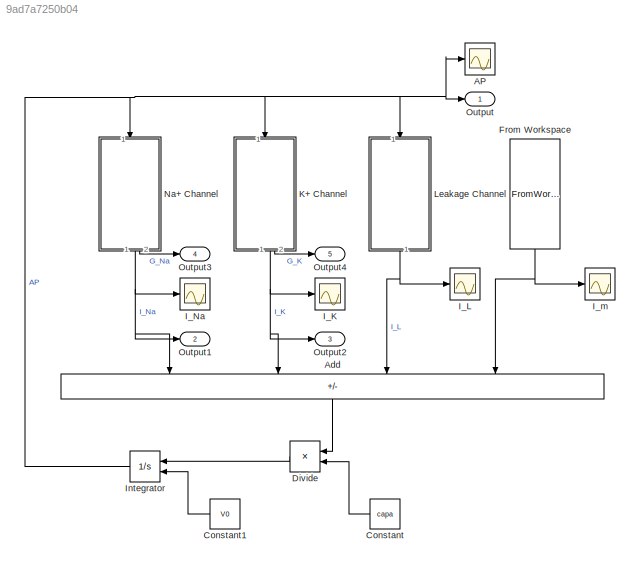
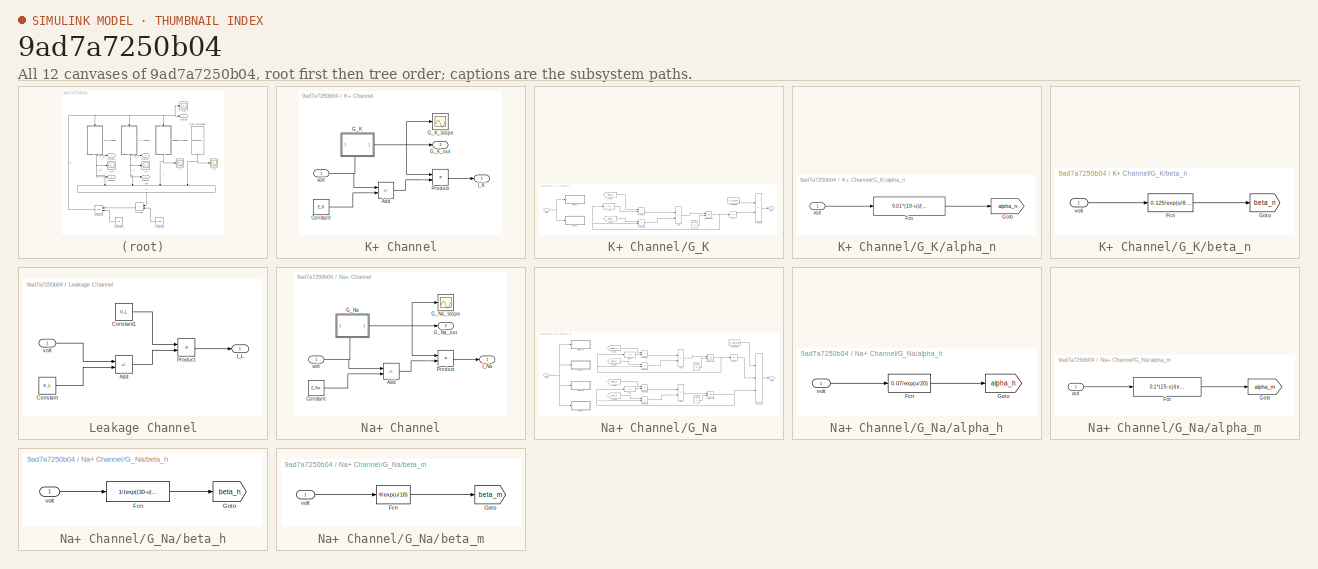
[diagram: thumbnail index - all 12 canvases of the model, root first then tree order]
MODEL slx_9ad7a7250b04
KIND model
CONFIG AbsTol = auto
CONFIG EnableMultiTasking = off
CONFIG FixedStep = auto
CONFIG MaxStep = auto
CONFIG MinStep = auto
CONFIG RelTol = 1e-3
CONFIG SampleTimeConstraint = Unconstrained
CONFIG SolverName = VariableStepAuto
CONFIG StartTime = 0.0
CONFIG StopTime = 10.0
BLOCK [Scope] AP
  Floating = off
  NumInputPorts = 1
  Ports = [1]
  ScopeSpecificationString = Simulink.scopes.TimeScopeBlockCfg('CurrentConfiguration', extmgr.ConfigurationSet(extmgr.Configuration('Core','General UI',true),extmgr.Configuration('Core','Source UI',true),extmgr.Configuration('Sources','WiredSimulink',true,'DataLoggingVariableName','ScopeData1'),extmgr.Configuration('Visuals','Time Domain',true,'SerializedDisplays',{struct('MinYLimReal','-26.86762','MaxYLimReal','129.4153','YL...<+1367ch>
BLOCK [Sum] Add
  IconShape = rectangular
  Inputs = ---+
  NameLocation = left
  Ports = [4, 1]
BLOCK [Constant] Constant
  NameLocation = top
  Value = capa
BLOCK [Constant] Constant1
  NameLocation = top
  Value = V0
BLOCK [Product] Divide
  Inputs = */
  NameLocation = top
  Ports = [2, 1]
BLOCK [FromWorkspace] From Workspace
  NameLocation = left
  VariableName = I_m
BLOCK [Scope] I_K
  Floating = off
  NumInputPorts = 1
  Ports = [1]
  ScopeSpecificationString = Simulink.scopes.TimeScopeBlockCfg('CurrentConfiguration', extmgr.ConfigurationSet(extmgr.Configuration('Core','General UI',true),extmgr.Configuration('Core','Source UI',true),extmgr.Configuration('Sources','WiredSimulink',true,'DataLoggingVariableName','ScopeData2'),extmgr.Configuration('Visuals','Time Domain',true,'SerializedDisplays',{struct('MinYLimReal','-116.75708','MaxYLimReal','1050.8137','...<+1406ch>
BLOCK [Scope] I_L
  Floating = off
  NumInputPorts = 1
  Ports = [1]
  ScopeSpecificationString = Simulink.scopes.TimeScopeBlockCfg('CurrentConfiguration', extmgr.ConfigurationSet(extmgr.Configuration('Core','General UI',true),extmgr.Configuration('Core','Source UI',true),extmgr.Configuration('Sources','WiredSimulink',true,'DataLoggingVariableName','ScopeData3'),extmgr.Configuration('Visuals','Time Domain',true,'SerializedDisplays',{struct('MinYLimReal','-11.24419','MaxYLimReal','35.64069','YL...<+1398ch>
BLOCK [Scope] I_Na
  Floating = off
  NumInputPorts = 1
  Ports = [1]
  ScopeSpecificationString = Simulink.scopes.TimeScopeBlockCfg('CurrentConfiguration', extmgr.ConfigurationSet(extmgr.Configuration('Core','General UI',true),extmgr.Configuration('Core','Source UI',true),extmgr.Configuration('Sources','WiredSimulink',true,'DataLoggingVariableName','ScopeData4'),extmgr.Configuration('Visuals','Time Domain',true,'SerializedDisplays',{struct('MinYLimReal','-1017.94679','MaxYLimReal','113.1052','...<+1410ch>
BLOCK [Scope] I_m
  Floating = off
  NumInputPorts = 1
  Ports = [1]
  ScopeSpecificationString = Simulink.scopes.TimeScopeBlockCfg('CurrentConfiguration', extmgr.ConfigurationSet(extmgr.Configuration('Core','General UI',true),extmgr.Configuration('Core','Source UI',true),extmgr.Configuration('Sources','WiredSimulink',true,'DataLoggingVariableName','ScopeData5'),extmgr.Configuration('Visuals','Time Domain',true,'SerializedDisplays',{struct('MinYLimReal','-3.75','MaxYLimReal','33.75','YLabelRea...<+1359ch>
BLOCK [Integrator] Integrator
  InitialConditionSource = external
  NameLocation = top
  Ports = [2, 1]
BLOCK [SubSystem] K+ Channel
  NameLocation = left
  Ports = [1, 2]
  RequestExecContextInheritance = off
BLOCK [Sum] K+ Channel/Add
  IconShape = rectangular
  Inputs = +-
  Ports = [2, 1]
BLOCK [Constant] K+ Channel/Constant
  Value = E_K
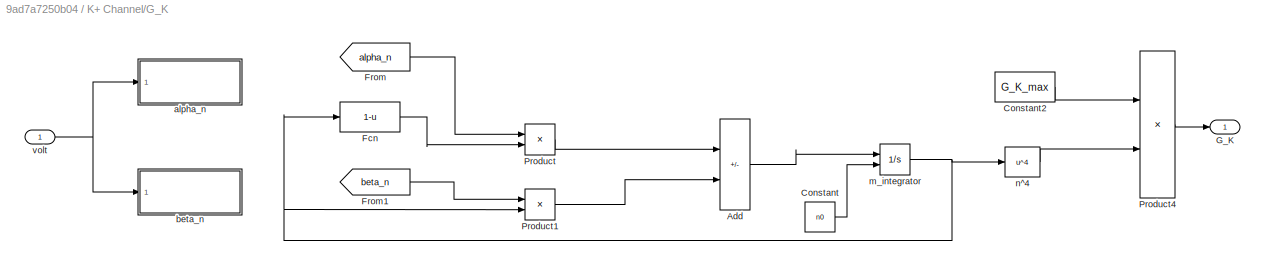
BLOCK [SubSystem] K+ Channel/G_K
  PortSchema = {"entries":[{"content":{"sides":[{"content":{"connectorIds":[]},"type":"ConnectorPlacement.EquallySpacedRectSide","uuid":"c632c91d-1676-4ce6-ab06-0028f8692ea5"},{"content":{"connectorIds":["Out1"],"side":"RIGHT"},"type":"ConnectorPlacement.EquallySpacedRectSide","uuid":"77b5085d-448e-4fc4-839b-3922e0b13526"},{"content":{"connectorIds":[],"side":"TOP"},"type":"ConnectorPlacement.EquallySpacedRectSi...<+528ch>
  Ports = [1, 1]
  RequestExecContextInheritance = off
BLOCK [Sum] K+ Channel/G_K/Add
  IconShape = rectangular
  Inputs = +-
  Ports = [2, 1]
BLOCK [Constant] K+ Channel/G_K/Constant
  Value = n0
BLOCK [Constant] K+ Channel/G_K/Constant2
  Value = G_K_max
BLOCK [Fcn] K+ Channel/G_K/Fcn
  Expr = 1-u
BLOCK [From] K+ Channel/G_K/From
  GotoTag = alpha_n
  TagVisibility = global
BLOCK [From] K+ Channel/G_K/From1
  GotoTag = beta_n
  TagVisibility = global
BLOCK [Outport] K+ Channel/G_K/G_K
BLOCK [Product] K+ Channel/G_K/Product
  Ports = [2, 1]
BLOCK [Product] K+ Channel/G_K/Product1
  Ports = [2, 1]
BLOCK [Product] K+ Channel/G_K/Product4
  Ports = [2, 1]
BLOCK [SubSystem] K+ Channel/G_K/alpha_n
  Ports = [1]
  RequestExecContextInheritance = off
BLOCK [Fcn] K+ Channel/G_K/alpha_n/Fcn
  Expr = 0.01*(10-u)/(exp((10-u)/10)-1)
BLOCK [Goto] K+ Channel/G_K/alpha_n/Goto
  GotoTag = alpha_n
  TagVisibility = global
BLOCK [Inport] K+ Channel/G_K/alpha_n/volt
BLOCK [SubSystem] K+ Channel/G_K/beta_n
  Ports = [1]
  RequestExecContextInheritance = off
BLOCK [Fcn] K+ Channel/G_K/beta_n/Fcn
  Expr = 0.125/exp(u/80)
BLOCK [Goto] K+ Channel/G_K/beta_n/Goto
  GotoTag = beta_n
  TagVisibility = global
BLOCK [Inport] K+ Channel/G_K/beta_n/volt
BLOCK [Integrator] K+ Channel/G_K/m_integrator
  InitialConditionSource = external
  Ports = [2, 1]
BLOCK [Fcn] K+ Channel/G_K/n^4
  Expr = u^4
BLOCK [Inport] K+ Channel/G_K/volt
BLOCK [Outport] K+ Channel/G_K_out
  Port = 2
  VectorParamsAs1DForOutWhenUnconnected = off
BLOCK [Scope] K+ Channel/G_K_scope
  Floating = off
  NumInputPorts = 1
  Ports = [1]
  ScopeSpecificationString = Simulink.scopes.TimeScopeBlockCfg('CurrentConfiguration', extmgr.ConfigurationSet(extmgr.Configuration('Core','General UI',true),extmgr.Configuration('Core','Source UI',true),extmgr.Configuration('Sources','WiredSimulink',true,'DataLoggingVariableName','ScopeData6'),extmgr.Configuration('Visuals','Time Domain',true,'SerializedDisplays',{struct('MinYLimReal','-1.73018','MaxYLimReal','15.57163','YLa...<+1401ch>
BLOCK [Outport] K+ Channel/I_K
  VectorParamsAs1DForOutWhenUnconnected = off
BLOCK [Product] K+ Channel/Product
  Ports = [2, 1]
BLOCK [Inport] K+ Channel/volt
BLOCK [SubSystem] Leakage Channel
  NameLocation = left
  Ports = [1, 1]
  RequestExecContextInheritance = off
BLOCK [Sum] Leakage Channel/Add
  IconShape = rectangular
  Inputs = +-
  Ports = [2, 1]
BLOCK [Constant] Leakage Channel/Constant
  Value = E_L
BLOCK [Constant] Leakage Channel/Constant1
  Value = G_L
BLOCK [Outport] Leakage Channel/I_L
  VectorParamsAs1DForOutWhenUnconnected = off
BLOCK [Product] Leakage Channel/Product
  Ports = [2, 1]
BLOCK [Inport] Leakage Channel/volt
BLOCK [SubSystem] Na+ Channel
  NameLocation = left
  Ports = [1, 2]
  RequestExecContextInheritance = off
BLOCK [Sum] Na+ Channel/Add
  IconShape = rectangular
  Inputs = +-
  Ports = [2, 1]
BLOCK [Constant] Na+ Channel/Constant
  Value = E_Na
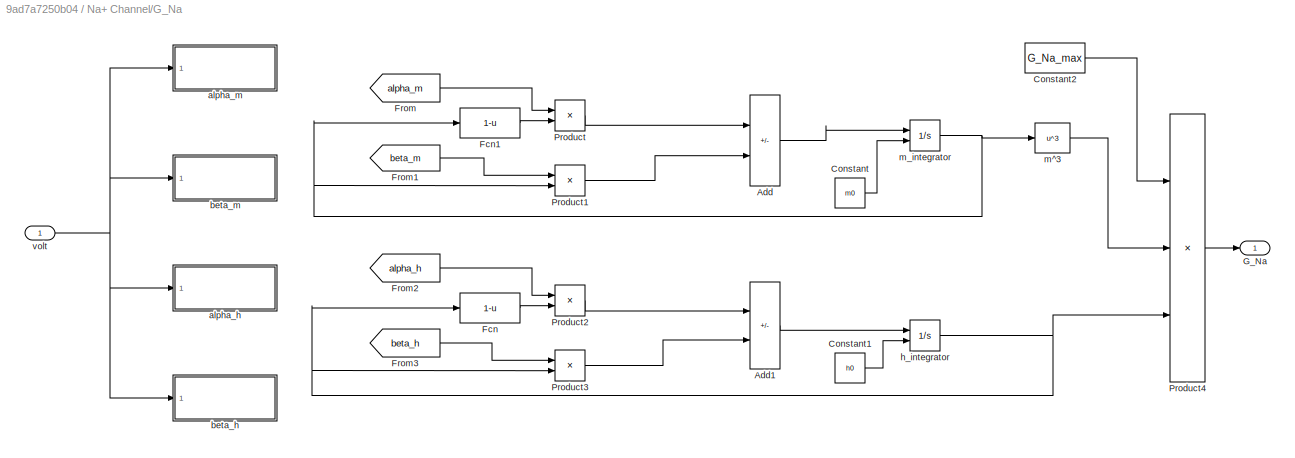
BLOCK [SubSystem] Na+ Channel/G_Na
  PortSchema = {"entries":[{"content":{"sides":[{"content":{"connectorIds":[]},"type":"ConnectorPlacement.EquallySpacedRectSide","uuid":"c632c91d-1676-4ce6-ab06-0028f8692ea5"},{"content":{"connectorIds":["Out1"],"side":"RIGHT"},"type":"ConnectorPlacement.EquallySpacedRectSide","uuid":"77b5085d-448e-4fc4-839b-3922e0b13526"},{"content":{"connectorIds":[],"side":"TOP"},"type":"ConnectorPlacement.EquallySpacedRectSi...<+528ch>
  Ports = [1, 1]
  RequestExecContextInheritance = off
BLOCK [Sum] Na+ Channel/G_Na/Add
  IconShape = rectangular
  Inputs = +-
  Ports = [2, 1]
BLOCK [Sum] Na+ Channel/G_Na/Add1
  IconShape = rectangular
  Inputs = +-
  Ports = [2, 1]
BLOCK [Constant] Na+ Channel/G_Na/Constant
  Value = m0
BLOCK [Constant] Na+ Channel/G_Na/Constant1
  Value = h0
BLOCK [Constant] Na+ Channel/G_Na/Constant2
  Value = G_Na_max
BLOCK [Fcn] Na+ Channel/G_Na/Fcn
  Expr = 1-u
BLOCK [Fcn] Na+ Channel/G_Na/Fcn1
  Expr = 1-u
BLOCK [From] Na+ Channel/G_Na/From
  GotoTag = alpha_m
  TagVisibility = global
BLOCK [From] Na+ Channel/G_Na/From1
  GotoTag = beta_m
  TagVisibility = global
BLOCK [From] Na+ Channel/G_Na/From2
  GotoTag = alpha_h
  TagVisibility = global
BLOCK [From] Na+ Channel/G_Na/From3
  GotoTag = beta_h
  TagVisibility = global
BLOCK [Outport] Na+ Channel/G_Na/G_Na
BLOCK [Product] Na+ Channel/G_Na/Product
  Ports = [2, 1]
BLOCK [Product] Na+ Channel/G_Na/Product1
  Ports = [2, 1]
BLOCK [Product] Na+ Channel/G_Na/Product2
  Ports = [2, 1]
BLOCK [Product] Na+ Channel/G_Na/Product3
  Ports = [2, 1]
BLOCK [Product] Na+ Channel/G_Na/Product4
  Inputs = 3
  Ports = [3, 1]
BLOCK [SubSystem] Na+ Channel/G_Na/alpha_h
  Ports = [1]
  RequestExecContextInheritance = off
BLOCK [Fcn] Na+ Channel/G_Na/alpha_h/Fcn
  Expr = 0.07/exp(u/20)
BLOCK [Goto] Na+ Channel/G_Na/alpha_h/Goto
  GotoTag = alpha_h
  TagVisibility = global
BLOCK [Inport] Na+ Channel/G_Na/alpha_h/volt
BLOCK [SubSystem] Na+ Channel/G_Na/alpha_m
  Ports = [1]
  RequestExecContextInheritance = off
BLOCK [Fcn] Na+ Channel/G_Na/alpha_m/Fcn
  Expr = 0.1*(25-u)/(exp((25-u)/10)-1)
BLOCK [Goto] Na+ Channel/G_Na/alpha_m/Goto
  GotoTag = alpha_m
  TagVisibility = global
BLOCK [Inport] Na+ Channel/G_Na/alpha_m/volt
BLOCK [SubSystem] Na+ Channel/G_Na/beta_h
  Ports = [1]
  RequestExecContextInheritance = off
BLOCK [Fcn] Na+ Channel/G_Na/beta_h/Fcn
  Expr = 1/(exp((30-u)/10)+1)
BLOCK [Goto] Na+ Channel/G_Na/beta_h/Goto
  GotoTag = beta_h
  TagVisibility = global
BLOCK [Inport] Na+ Channel/G_Na/beta_h/volt
BLOCK [SubSystem] Na+ Channel/G_Na/beta_m
  Ports = [1]
  RequestExecContextInheritance = off
BLOCK [Fcn] Na+ Channel/G_Na/beta_m/Fcn
  Expr = 4/exp(u/18)
BLOCK [Goto] Na+ Channel/G_Na/beta_m/Goto
  GotoTag = beta_m
  TagVisibility = global
BLOCK [Inport] Na+ Channel/G_Na/beta_m/volt
BLOCK [Integrator] Na+ Channel/G_Na/h_integrator
  InitialConditionSource = external
  Ports = [2, 1]
BLOCK [Fcn] Na+ Channel/G_Na/m^3
  Expr = u^3
BLOCK [Integrator] Na+ Channel/G_Na/m_integrator
  InitialConditionSource = external
  Ports = [2, 1]
BLOCK [Inport] Na+ Channel/G_Na/volt
BLOCK [Outport] Na+ Channel/G_Na_out
  Port = 2
  VectorParamsAs1DForOutWhenUnconnected = off
BLOCK [Scope] Na+ Channel/G_Na_scope
  Floating = off
  NumInputPorts = 1
  Ports = [1]
  ScopeSpecificationString = Simulink.scopes.TimeScopeBlockCfg('CurrentConfiguration', extmgr.ConfigurationSet(extmgr.Configuration('Core','General UI',true),extmgr.Configuration('Core','Source UI',true),extmgr.Configuration('Sources','WiredSimulink',true,'DataLoggingVariableName','ScopeData5'),extmgr.Configuration('Visuals','Time Domain',true,'SerializedDisplays',{struct('MinYLimReal','-7.41192','MaxYLimReal','66.70725','YLa...<+1397ch>
BLOCK [Outport] Na+ Channel/I_Na
  VectorParamsAs1DForOutWhenUnconnected = off
BLOCK [Product] Na+ Channel/Product
  Ports = [2, 1]
BLOCK [Inport] Na+ Channel/volt
BLOCK [Outport] Output
  VectorParamsAs1DForOutWhenUnconnected = off
BLOCK [Outport] Output1
  Port = 2
  VectorParamsAs1DForOutWhenUnconnected = off
BLOCK [Outport] Output2
  Port = 3
  VectorParamsAs1DForOutWhenUnconnected = off
BLOCK [Outport] Output3
  Port = 4
  VectorParamsAs1DForOutWhenUnconnected = off
BLOCK [Outport] Output4
  Port = 5
  VectorParamsAs1DForOutWhenUnconnected = off
LINE Add:1 -> Divide:1
LINE Constant1:1 -> Integrator:2
LINE Constant:1 -> Divide:2
LINE Divide:1 -> Integrator:1
NET From Workspace:1 -> Add:4, I_m:1
NET Integrator:1 -> AP:1, K+ Channel:1, Leakage Channel:1, Na+ Channel:1, Output:1
LINE K+ Channel/Add:1 -> K+ Channel/Product:2
LINE K+ Channel/Constant:1 -> K+ Channel/Add:2
LINE K+ Channel/G_K/Add:1 -> K+ Channel/G_K/m_integrator:1
LINE K+ Channel/G_K/Constant2:1 -> K+ Channel/G_K/Product4:1
LINE K+ Channel/G_K/Constant:1 -> K+ Channel/G_K/m_integrator:2
LINE K+ Channel/G_K/Fcn:1 -> K+ Channel/G_K/Product:2
LINE K+ Channel/G_K/From1:1 -> K+ Channel/G_K/Product1:1
LINE K+ Channel/G_K/From:1 -> K+ Channel/G_K/Product:1
LINE K+ Channel/G_K/Product1:1 -> K+ Channel/G_K/Add:2
LINE K+ Channel/G_K/Product4:1 -> K+ Channel/G_K/G_K:1
LINE K+ Channel/G_K/Product:1 -> K+ Channel/G_K/Add:1
LINE K+ Channel/G_K/alpha_n/Fcn:1 -> K+ Channel/G_K/alpha_n/Goto:1
LINE K+ Channel/G_K/alpha_n/volt:1 -> K+ Channel/G_K/alpha_n/Fcn:1
LINE K+ Channel/G_K/beta_n/Fcn:1 -> K+ Channel/G_K/beta_n/Goto:1
LINE K+ Channel/G_K/beta_n/volt:1 -> K+ Channel/G_K/beta_n/Fcn:1
NET K+ Channel/G_K/m_integrator:1 -> K+ Channel/G_K/Fcn:1, K+ Channel/G_K/Product1:2, K+ Channel/G_K/n^4:1
LINE K+ Channel/G_K/n^4:1 -> K+ Channel/G_K/Product4:2
NET K+ Channel/G_K/volt:1 -> K+ Channel/G_K/alpha_n:1, K+ Channel/G_K/beta_n:1
NET K+ Channel/G_K:1 -> K+ Channel/G_K_out:1, K+ Channel/G_K_scope:1, K+ Channel/Product:1
LINE K+ Channel/Product:1 -> K+ Channel/I_K:1
NET K+ Channel/volt:1 -> K+ Channel/Add:1, K+ Channel/G_K:1
NET K+ Channel:1 -> Add:2, I_K:1, Output2:1
LINE K+ Channel:2 -> Output4:1
LINE Leakage Channel/Add:1 -> Leakage Channel/Product:2
LINE Leakage Channel/Constant1:1 -> Leakage Channel/Product:1
LINE Leakage Channel/Constant:1 -> Leakage Channel/Add:2
LINE Leakage Channel/Product:1 -> Leakage Channel/I_L:1
LINE Leakage Channel/volt:1 -> Leakage Channel/Add:1
NET Leakage Channel:1 -> Add:3, I_L:1
LINE Na+ Channel/Add:1 -> Na+ Channel/Product:2
LINE Na+ Channel/Constant:1 -> Na+ Channel/Add:2
LINE Na+ Channel/G_Na/Add1:1 -> Na+ Channel/G_Na/h_integrator:1
LINE Na+ Channel/G_Na/Add:1 -> Na+ Channel/G_Na/m_integrator:1
LINE Na+ Channel/G_Na/Constant1:1 -> Na+ Channel/G_Na/h_integrator:2
LINE Na+ Channel/G_Na/Constant2:1 -> Na+ Channel/G_Na/Product4:1
LINE Na+ Channel/G_Na/Constant:1 -> Na+ Channel/G_Na/m_integrator:2
LINE Na+ Channel/G_Na/Fcn1:1 -> Na+ Channel/G_Na/Product:2
LINE Na+ Channel/G_Na/Fcn:1 -> Na+ Channel/G_Na/Product2:2
LINE Na+ Channel/G_Na/From1:1 -> Na+ Channel/G_Na/Product1:1
LINE Na+ Channel/G_Na/From2:1 -> Na+ Channel/G_Na/Product2:1
LINE Na+ Channel/G_Na/From3:1 -> Na+ Channel/G_Na/Product3:1
LINE Na+ Channel/G_Na/From:1 -> Na+ Channel/G_Na/Product:1
LINE Na+ Channel/G_Na/Product1:1 -> Na+ Channel/G_Na/Add:2
LINE Na+ Channel/G_Na/Product2:1 -> Na+ Channel/G_Na/Add1:1
LINE Na+ Channel/G_Na/Product3:1 -> Na+ Channel/G_Na/Add1:2
LINE Na+ Channel/G_Na/Product4:1 -> Na+ Channel/G_Na/G_Na:1
LINE Na+ Channel/G_Na/Product:1 -> Na+ Channel/G_Na/Add:1
LINE Na+ Channel/G_Na/alpha_h/Fcn:1 -> Na+ Channel/G_Na/alpha_h/Goto:1
LINE Na+ Channel/G_Na/alpha_h/volt:1 -> Na+ Channel/G_Na/alpha_h/Fcn:1
LINE Na+ Channel/G_Na/alpha_m/Fcn:1 -> Na+ Channel/G_Na/alpha_m/Goto:1
LINE Na+ Channel/G_Na/alpha_m/volt:1 -> Na+ Channel/G_Na/alpha_m/Fcn:1
LINE Na+ Channel/G_Na/beta_h/Fcn:1 -> Na+ Channel/G_Na/beta_h/Goto:1
LINE Na+ Channel/G_Na/beta_h/volt:1 -> Na+ Channel/G_Na/beta_h/Fcn:1
LINE Na+ Channel/G_Na/beta_m/Fcn:1 -> Na+ Channel/G_Na/beta_m/Goto:1
LINE Na+ Channel/G_Na/beta_m/volt:1 -> Na+ Channel/G_Na/beta_m/Fcn:1
NET Na+ Channel/G_Na/h_integrator:1 -> Na+ Channel/G_Na/Fcn:1, Na+ Channel/G_Na/Product3:2, Na+ Channel/G_Na/Product4:3
LINE Na+ Channel/G_Na/m^3:1 -> Na+ Channel/G_Na/Product4:2
NET Na+ Channel/G_Na/m_integrator:1 -> Na+ Channel/G_Na/Fcn1:1, Na+ Channel/G_Na/Product1:2, Na+ Channel/G_Na/m^3:1
NET Na+ Channel/G_Na/volt:1 -> Na+ Channel/G_Na/alpha_h:1, Na+ Channel/G_Na/alpha_m:1, Na+ Channel/G_Na/beta_h:1, Na+ Channel/G_Na/beta_m:1
NET Na+ Channel/G_Na:1 -> Na+ Channel/G_Na_out:1, Na+ Channel/G_Na_scope:1, Na+ Channel/Product:1
LINE Na+ Channel/Product:1 -> Na+ Channel/I_Na:1
NET Na+ Channel/volt:1 -> Na+ Channel/Add:1, Na+ Channel/G_Na:1
NET Na+ Channel:1 -> Add:1, I_Na:1, Output1:1
LINE Na+ Channel:2 -> Output3:1
note: NET lines group one-source signal fan-out (src -> all destinations, sorted); 1:1 wires keep LINE
